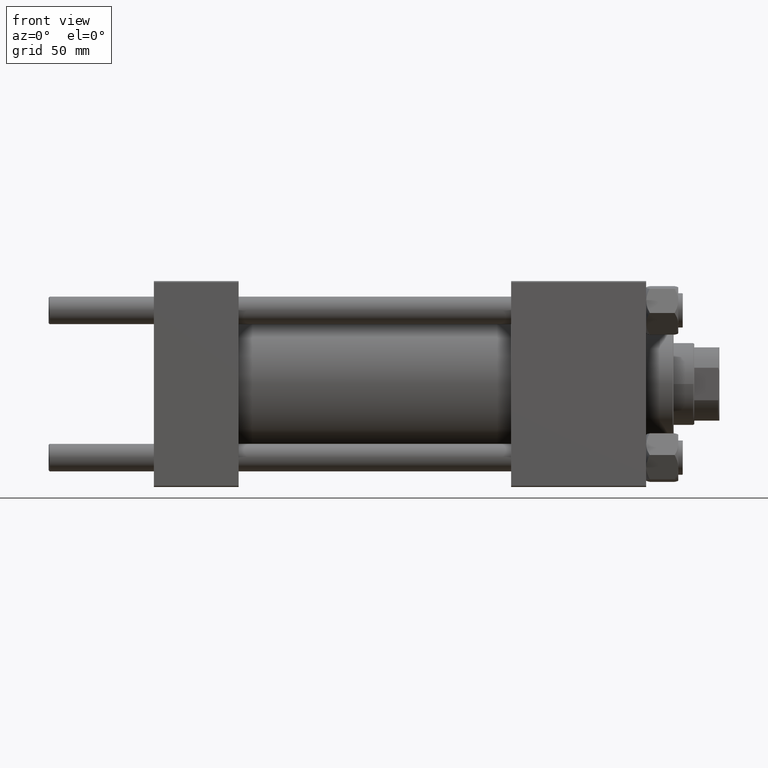
[diagram: clean part render]
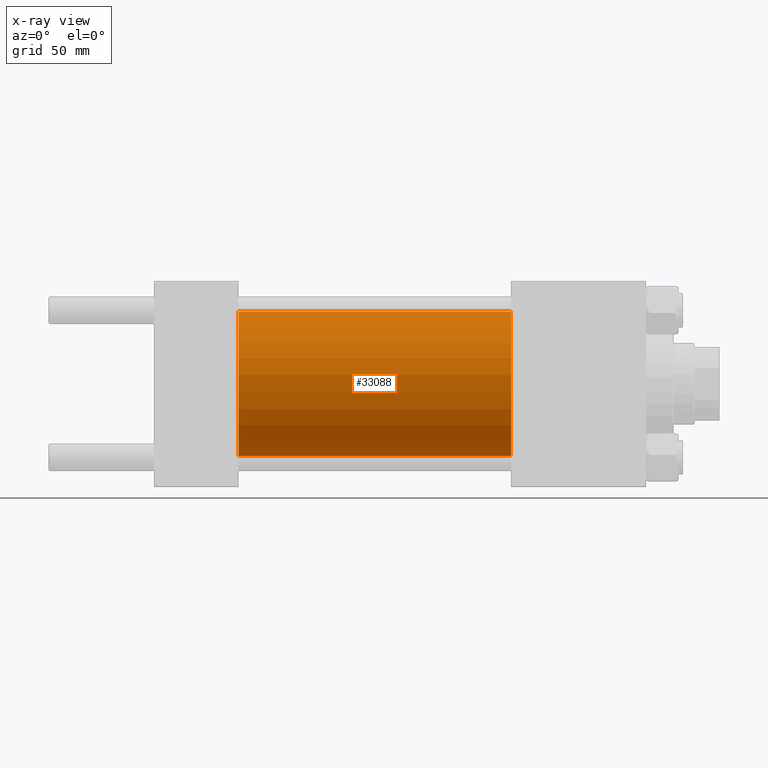
[diagram: x-ray — body ghosted, one internal face saturated and labeled with its STEP entity id]
A machine part, front view, then the same camera in x-ray: the body is ghosted and one INTERNAL B-rep face — a face not visible from any outside direction — is saturated and labeled: STEP entity #33088.
In plain terms, the highlighted cylindrical surface (partial cylindrical patch) has radius 31.5 mm, axis along (-1, -0, -0).
Its self-contained STEP definition (entity closure, byte-faithful):
#4971 = EDGE_CURVE ( 'NONE', #6674, #40522, #21917, .T. ) ;
#5067 = CARTESIAN_POINT ( 'NONE',  ( 156.0000000000000000, 0.000000000000000000, 0.000000000000000000 ) ) ;
#5722 = DIRECTION ( 'NONE',  ( 0.000000000000000000, 0.000000000000000000, -1.000000000000000000 ) ) ;
#6008 = FACE_OUTER_BOUND ( 'NONE', #34290, .T. ) ;
#6674 = VERTEX_POINT ( 'NONE', #39675 ) ;
#7207 = ORIENTED_EDGE ( 'NONE', *, *, #10356, .F. ) ;
#8904 = CARTESIAN_POINT ( 'NONE',  ( 37.00000000000000000, 3.857637417314162689E-15, -31.50000000000000000 ) ) ;
#9279 = DIRECTION ( 'NONE',  ( 0.000000000000000000, 0.000000000000000000, -1.000000000000000000 ) ) ;
#10006 = CARTESIAN_POINT ( 'NONE',  ( 37.00000000000000000, 0.000000000000000000, 31.50000000000000000 ) ) ;
#10229 = CARTESIAN_POINT ( 'NONE',  ( 156.0000000000000000, 0.000000000000000000, 31.50000000000000000 ) ) ;
#10356 = EDGE_CURVE ( 'NONE', #6674, #25267, #29918, .T. ) ;
#10820 = VECTOR ( 'NONE', #33965, 1000.000000000000000 ) ;
#12657 = CYLINDRICAL_SURFACE ( 'NONE', #42193, 31.50000000000000000 ) ;
#15732 = LINE ( 'NONE', #23312, #20171 ) ;
#19515 = DIRECTION ( 'NONE',  ( -1.000000000000000000, -0.000000000000000000, -0.000000000000000000 ) ) ;
#20171 = VECTOR ( 'NONE', #19515, 1000.000000000000000 ) ;
#21427 = DIRECTION ( 'NONE',  ( -1.000000000000000000, -0.000000000000000000, -0.000000000000000000 ) ) ;
#21917 = CIRCLE ( 'NONE', #27574, 31.50000000000000000 ) ;
#23312 = CARTESIAN_POINT ( 'NONE',  ( 156.0000000000000000, 3.857637417314162689E-15, -31.50000000000000000 ) ) ;
#24674 = CARTESIAN_POINT ( 'NONE',  ( 156.0000000000000000, 0.000000000000000000, 0.000000000000000000 ) ) ;
#25267 = VERTEX_POINT ( 'NONE', #10006 ) ;
#25659 = EDGE_CURVE ( 'NONE', #40522, #26326, #15732, .T. ) ;
#26326 = VERTEX_POINT ( 'NONE', #8904 ) ;
#27574 = AXIS2_PLACEMENT_3D ( 'NONE', #24674, #28711, #9279 ) ;
#27815 = DIRECTION ( 'NONE',  ( 0.000000000000000000, 0.000000000000000000, 1.000000000000000000 ) ) ;
#28702 = ORIENTED_EDGE ( 'NONE', *, *, #4971, .T. ) ;
#28711 = DIRECTION ( 'NONE',  ( 1.000000000000000000, 0.000000000000000000, 0.000000000000000000 ) ) ;
#29918 = LINE ( 'NONE', #10229, #10820 ) ;
#29985 = EDGE_CURVE ( 'NONE', #25267, #26326, #38843, .T. ) ;
#33088 = ADVANCED_FACE ( 'NONE', ( #6008 ), #12657, .F. ) ;
#33965 = DIRECTION ( 'NONE',  ( -1.000000000000000000, -0.000000000000000000, -0.000000000000000000 ) ) ;
#34290 = EDGE_LOOP ( 'NONE', ( #28702, #44097, #37526, #7207 ) ) ;
#36804 = DIRECTION ( 'NONE',  ( 1.000000000000000000, 0.000000000000000000, 0.000000000000000000 ) ) ;
#37526 = ORIENTED_EDGE ( 'NONE', *, *, #29985, .F. ) ;
#38258 = CARTESIAN_POINT ( 'NONE',  ( 156.0000000000000000, 3.857637417314162689E-15, -31.50000000000000000 ) ) ;
#38843 = CIRCLE ( 'NONE', #40463, 31.50000000000000000 ) ;
#39675 = CARTESIAN_POINT ( 'NONE',  ( 156.0000000000000000, 0.000000000000000000, 31.50000000000000000 ) ) ;
#40463 = AXIS2_PLACEMENT_3D ( 'NONE', #44874, #36804, #5722 ) ;
#40522 = VERTEX_POINT ( 'NONE', #38258 ) ;
#42193 = AXIS2_PLACEMENT_3D ( 'NONE', #5067, #21427, #27815 ) ;
#44097 = ORIENTED_EDGE ( 'NONE', *, *, #25659, .T. ) ;
#44874 = CARTESIAN_POINT ( 'NONE',  ( 37.00000000000000000, 0.000000000000000000, 0.000000000000000000 ) ) ;